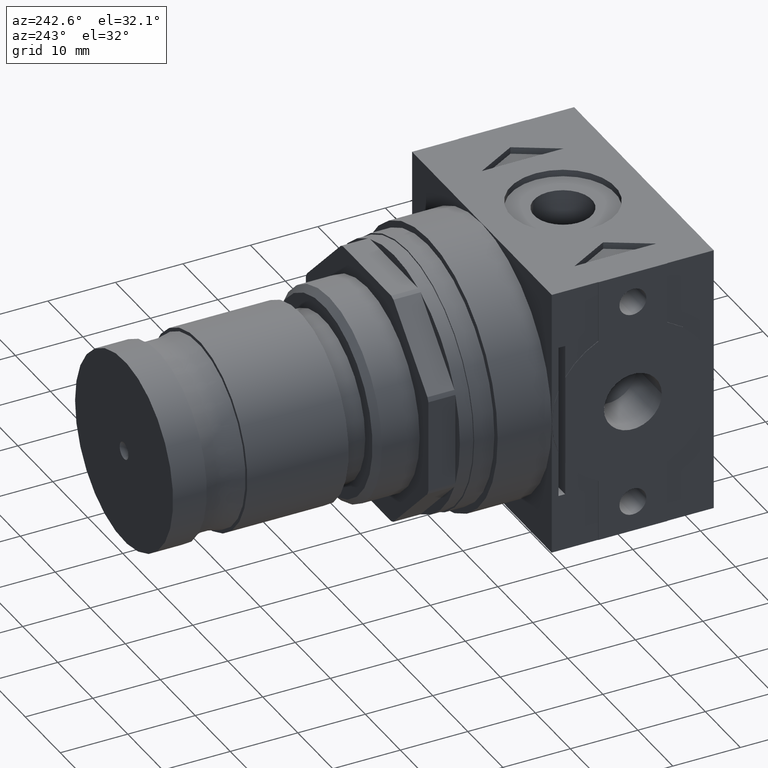
[diagram: clean part render]
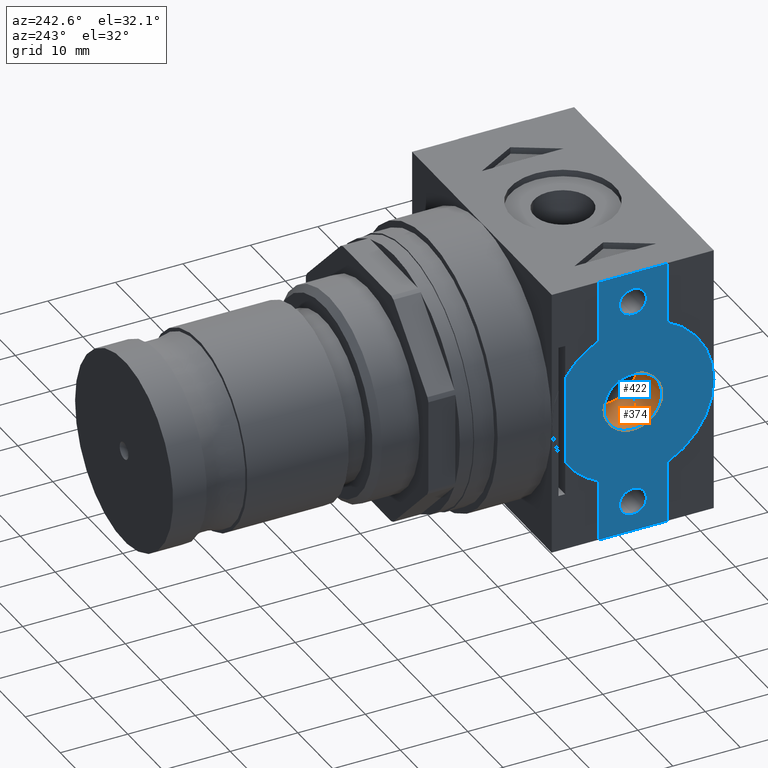
[diagram: same view with the hole feature highlighted: cylindrical wall and planar end face, labeled with their STEP entity ids]
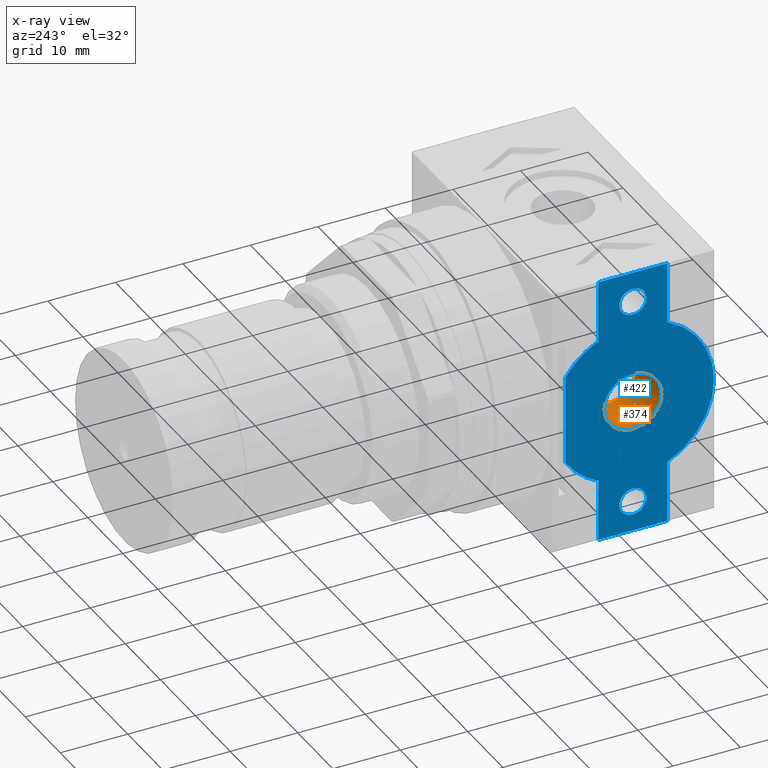
[diagram: x-ray of the same camera — body ghosted, the hole faces saturated]
A machine part, auxiliary view. The highlighted faces form one hole feature of diameter 8.566 mm: the cylindrical wall (entity #374, orange) and its adjacent planar end face (entity #422, blue) — they share a circular edge in the B-rep.
The next image is the same camera in x-ray (body ghosted, the hole faces saturated) — the bore reads through the body.
Wall:
#374 = ADVANCED_FACE( '', ( #776, #777 ), #778, .F. );
#776 = FACE_OUTER_BOUND( '', #1221, .T. );
#777 = FACE_OUTER_BOUND( '', #1222, .T. );
#778 = CYLINDRICAL_SURFACE( '', #1223, 4.28300000000000 );
#1221 = EDGE_LOOP( '', ( #2031 ) );
#1222 = EDGE_LOOP( '', ( #2032 ) );
#1223 = AXIS2_PLACEMENT_3D( '', #2033, #2034, #2035 );
#2031 = ORIENTED_EDGE( '', *, *, #2728, .T. );
#2032 = ORIENTED_EDGE( '', *, *, #2729, .F. );
#2033 = CARTESIAN_POINT( '', ( -20.0000000000000, 2.44929359829471E-015, 0.000000000000000 ) );
#2034 = DIRECTION( '', ( 1.00000000000000, -1.22464679914735E-016, -0.000000000000000 ) );
#2035 = DIRECTION( '', ( -1.22464679914735E-016, -1.00000000000000, 0.000000000000000 ) );
#2728 = EDGE_CURVE( '', #3290, #3290, #3291, .T. );
#2729 = EDGE_CURVE( '', #3292, #3292, #3293, .T. );
#3290 = VERTEX_POINT( '', #4021 );
#3291 = CIRCLE( '', #4022, 4.28300000000000 );
#3292 = VERTEX_POINT( '', #4023 );
#3293 = CIRCLE( '', #4024, 4.28300000000000 );
#4021 = CARTESIAN_POINT( '', ( -20.0000000000000, -4.28300000000000, 0.000000000000000 ) );
#4022 = AXIS2_PLACEMENT_3D( '', #4497, #4498, #4499 );
#4023 = CARTESIAN_POINT( '', ( -12.8000000000000, -4.28300000000000, 0.000000000000000 ) );
#4024 = AXIS2_PLACEMENT_3D( '', #4500, #4501, #4502 );
#4497 = CARTESIAN_POINT( '', ( -20.0000000000000, 2.44929359829471E-015, 0.000000000000000 ) );
#4498 = DIRECTION( '', ( -1.00000000000000, 1.22464679914735E-016, 0.000000000000000 ) );
#4499 = DIRECTION( '', ( -1.22464679914735E-016, -1.00000000000000, 0.000000000000000 ) );
#4500 = CARTESIAN_POINT( '', ( -12.8000000000000, 1.56754790290861E-015, 0.000000000000000 ) );
#4501 = DIRECTION( '', ( -1.00000000000000, 1.22464679914735E-016, 0.000000000000000 ) );
#4502 = DIRECTION( '', ( -1.22464679914735E-016, -1.00000000000000, 0.000000000000000 ) );
End face:
#422 = ADVANCED_FACE( '', ( #862, #863, #864, #865 ), #866, .F. );
#862 = FACE_BOUND( '', #1307, .T. );
#863 = FACE_BOUND( '', #1308, .T. );
#864 = FACE_BOUND( '', #1309, .T. );
#865 = FACE_OUTER_BOUND( '', #1310, .T. );
#866 = PLANE( '', #1311 );
#1307 = EDGE_LOOP( '', ( #2216 ) );
#1308 = EDGE_LOOP( '', ( #2217 ) );
#1309 = EDGE_LOOP( '', ( #2218 ) );
#1310 = EDGE_LOOP( '', ( #2219, #2220, #2221, #2222, #2223, #2224, #2225, #2226, #2227, #2228 ) );
#1311 = AXIS2_PLACEMENT_3D( '', #2229, #2230, #2231 );
#2216 = ORIENTED_EDGE( '', *, *, #2728, .F. );
#2217 = ORIENTED_EDGE( '', *, *, #2783, .T. );
#2218 = ORIENTED_EDGE( '', *, *, #2713, .T. );
#2219 = ORIENTED_EDGE( '', *, *, #2573, .T. );
#2220 = ORIENTED_EDGE( '', *, *, #2755, .F. );
#2221 = ORIENTED_EDGE( '', *, *, #2784, .F. );
#2222 = ORIENTED_EDGE( '', *, *, #2448, .F. );
#2223 = ORIENTED_EDGE( '', *, *, #2579, .F. );
#2224 = ORIENTED_EDGE( '', *, *, #2614, .F. );
#2225 = ORIENTED_EDGE( '', *, *, #2569, .F. );
#2226 = ORIENTED_EDGE( '', *, *, #2763, .F. );
#2227 = ORIENTED_EDGE( '', *, *, #2767, .F. );
#2228 = ORIENTED_EDGE( '', *, *, #2785, .F. );
#2229 = CARTESIAN_POINT( '', ( -20.0000000000000, 8.67361737988404E-015, 1.73472347597681E-015 ) );
#2230 = DIRECTION( '', ( 1.00000000000000, 0.000000000000000, 0.000000000000000 ) );
#2231 = DIRECTION( '', ( 0.000000000000000, 0.000000000000000, -1.00000000000000 ) );
#2448 = EDGE_CURVE( '', #2863, #2843, #2865, .T. );
#2569 = EDGE_CURVE( '', #3058, #3056, #3060, .T. );
#2573 = EDGE_CURVE( '', #3066, #3064, #3067, .T. );
#2579 = EDGE_CURVE( '', #3073, #2863, #3075, .T. );
#2614 = EDGE_CURVE( '', #3056, #3073, #3126, .T. );
#2713 = EDGE_CURVE( '', #3272, #3272, #3273, .T. );
#2728 = EDGE_CURVE( '', #3290, #3290, #3291, .T. );
#2755 = EDGE_CURVE( '', #3321, #3064, #3323, .T. );
#2763 = EDGE_CURVE( '', #3331, #3058, #3333, .T. );
#2767 = EDGE_CURVE( '', #3336, #3331, #3338, .T. );
#2783 = EDGE_CURVE( '', #3355, #3355, #3356, .T. );
#2784 = EDGE_CURVE( '', #2843, #3321, #3357, .T. );
#2785 = EDGE_CURVE( '', #3066, #3336, #3358, .T. );
#2843 = VERTEX_POINT( '', #3423 );
#2863 = VERTEX_POINT( '', #3453 );
#2865 = LINE( '', #3456, #3457 );
#3056 = VERTEX_POINT( '', #3712 );
#3058 = VERTEX_POINT( '', #3715 );
#3060 = LINE( '', #3718, #3719 );
#3064 = VERTEX_POINT( '', #3724 );
#3066 = VERTEX_POINT( '', #3727 );
#3067 = LINE( '', #3728, #3729 );
#3073 = VERTEX_POINT( '', #3738 );
#3075 = LINE( '', #3741, #3742 );
#3126 = CIRCLE( '', #3807, 12.0000000000000 );
#3272 = VERTEX_POINT( '', #4000 );
#3273 = CIRCLE( '', #4001, 2.00000000000000 );
#3290 = VERTEX_POINT( '', #4021 );
#3291 = CIRCLE( '', #4022, 4.28300000000000 );
#3321 = VERTEX_POINT( '', #4058 );
#3323 = CIRCLE( '', #4061, 12.0000000000000 );
#3331 = VERTEX_POINT( '', #4071 );
#3333 = LINE( '', #4074, #4075 );
#3336 = VERTEX_POINT( '', #4079 );
#3338 = LINE( '', #4082, #4083 );
#3355 = VERTEX_POINT( '', #4107 );
#3356 = CIRCLE( '', #4108, 2.00000000000000 );
#3357 = LINE( '', #4109, #4110 );
#3358 = CIRCLE( '', #4111, 12.0000000000000 );
#3423 = CARTESIAN_POINT( '', ( -20.0000000000000, 5.10000000000000, -20.0000000000000 ) );
#3453 = CARTESIAN_POINT( '', ( -20.0000000000000, -5.10000000000000, -20.0000000000000 ) );
#3456 = CARTESIAN_POINT( '', ( -20.0000000000000, -5.10000000000000, -20.0000000000000 ) );
#3457 = VECTOR( '', #4174, 1000.00000000000 );
#3712 = CARTESIAN_POINT( '', ( -20.0000000000000, -5.10000000000000, 10.8623201941390 ) );
#3715 = CARTESIAN_POINT( '', ( -20.0000000000000, -5.10000000000000, 20.0000000000000 ) );
#3718 = CARTESIAN_POINT( '', ( -20.0000000000000, -5.10000000000000, 20.0000000000000 ) );
#3719 = VECTOR( '', #4313, 1000.00000000000 );
#3724 = CARTESIAN_POINT( '', ( -20.0000000000000, 10.0000000000000, -6.63324958071079 ) );
#3727 = CARTESIAN_POINT( '', ( -20.0000000000000, 10.0000000000000, 6.63324958071079 ) );
#3728 = CARTESIAN_POINT( '', ( -20.0000000000000, 10.0000000000000, 11.5000000000000 ) );
#3729 = VECTOR( '', #4316, 1000.00000000000 );
#3738 = CARTESIAN_POINT( '', ( -20.0000000000000, -5.10000000000000, -10.8623201941390 ) );
#3741 = CARTESIAN_POINT( '', ( -20.0000000000000, -5.10000000000000, -10.8623201941390 ) );
#3742 = VECTOR( '', #4321, 1000.00000000000 );
#3807 = AXIS2_PLACEMENT_3D( '', #4357, #4358, #4359 );
#4000 = CARTESIAN_POINT( '', ( -20.0000000000000, 0.000000000000000, -17.5000000000000 ) );
#4001 = AXIS2_PLACEMENT_3D( '', #4482, #4483, #4484 );
#4021 = CARTESIAN_POINT( '', ( -20.0000000000000, -4.28300000000000, 0.000000000000000 ) );
#4022 = AXIS2_PLACEMENT_3D( '', #4497, #4498, #4499 );
#4058 = CARTESIAN_POINT( '', ( -20.0000000000000, 5.10000000000000, -10.8623201941390 ) );
#4061 = AXIS2_PLACEMENT_3D( '', #4522, #4523, #4524 );
#4071 = CARTESIAN_POINT( '', ( -20.0000000000000, 5.10000000000000, 20.0000000000000 ) );
#4074 = CARTESIAN_POINT( '', ( -20.0000000000000, 5.10000000000000, 20.0000000000000 ) );
#4075 = VECTOR( '', #4531, 1000.00000000000 );
#4079 = CARTESIAN_POINT( '', ( -20.0000000000000, 5.10000000000000, 10.8623201941390 ) );
#4082 = CARTESIAN_POINT( '', ( -20.0000000000000, 5.10000000000000, 10.8623201941390 ) );
#4083 = VECTOR( '', #4534, 1000.00000000000 );
#4107 = CARTESIAN_POINT( '', ( -20.0000000000000, 0.000000000000000, 13.5000000000000 ) );
#4108 = AXIS2_PLACEMENT_3D( '', #4542, #4543, #4544 );
#4109 = CARTESIAN_POINT( '', ( -20.0000000000000, 5.10000000000000, -20.0000000000000 ) );
#4110 = VECTOR( '', #4545, 1000.00000000000 );
#4111 = AXIS2_PLACEMENT_3D( '', #4546, #4547, #4548 );
#4174 = DIRECTION( '', ( 0.000000000000000, 1.00000000000000, 0.000000000000000 ) );
#4313 = DIRECTION( '', ( 0.000000000000000, 0.000000000000000, -1.00000000000000 ) );
#4316 = DIRECTION( '', ( 0.000000000000000, 0.000000000000000, -1.00000000000000 ) );
#4321 = DIRECTION( '', ( 0.000000000000000, 0.000000000000000, -1.00000000000000 ) );
#4357 = CARTESIAN_POINT( '', ( -20.0000000000000, 8.67361737988404E-015, 1.73472347597681E-015 ) );
#4358 = DIRECTION( '', ( 1.00000000000000, 0.000000000000000, 0.000000000000000 ) );
#4359 = DIRECTION( '', ( 0.000000000000000, 0.000000000000000, -1.00000000000000 ) );
#4482 = CARTESIAN_POINT( '', ( -20.0000000000000, 0.000000000000000, -15.5000000000000 ) );
#4483 = DIRECTION( '', ( 1.00000000000000, 0.000000000000000, 0.000000000000000 ) );
#4484 = DIRECTION( '', ( 0.000000000000000, 0.000000000000000, -1.00000000000000 ) );
#4497 = CARTESIAN_POINT( '', ( -20.0000000000000, 2.44929359829471E-015, 0.000000000000000 ) );
#4498 = DIRECTION( '', ( -1.00000000000000, 1.22464679914735E-016, 0.000000000000000 ) );
#4499 = DIRECTION( '', ( -1.22464679914735E-016, -1.00000000000000, 0.000000000000000 ) );
#4522 = CARTESIAN_POINT( '', ( -20.0000000000000, -8.67361737988404E-015, -1.73472347597681E-015 ) );
#4523 = DIRECTION( '', ( 1.00000000000000, 0.000000000000000, 0.000000000000000 ) );
#4524 = DIRECTION( '', ( 0.000000000000000, 0.000000000000000, -1.00000000000000 ) );
#4531 = DIRECTION( '', ( 0.000000000000000, -1.00000000000000, 0.000000000000000 ) );
#4534 = DIRECTION( '', ( 0.000000000000000, 0.000000000000000, 1.00000000000000 ) );
#4542 = CARTESIAN_POINT( '', ( -20.0000000000000, 0.000000000000000, 15.5000000000000 ) );
#4543 = DIRECTION( '', ( 1.00000000000000, 0.000000000000000, 0.000000000000000 ) );
#4544 = DIRECTION( '', ( 0.000000000000000, 0.000000000000000, -1.00000000000000 ) );
#4545 = DIRECTION( '', ( 0.000000000000000, 0.000000000000000, 1.00000000000000 ) );
#4546 = CARTESIAN_POINT( '', ( -20.0000000000000, -8.67361737988404E-015, -1.73472347597681E-015 ) );
#4547 = DIRECTION( '', ( 1.00000000000000, 0.000000000000000, 0.000000000000000 ) );
#4548 = DIRECTION( '', ( 0.000000000000000, 0.000000000000000, -1.00000000000000 ) );